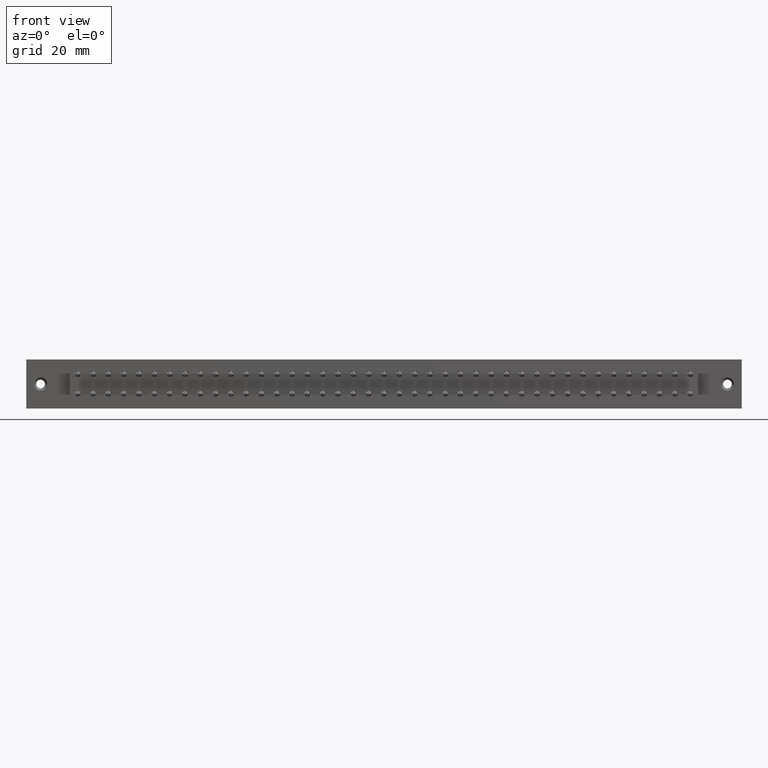
[diagram: clean part render]
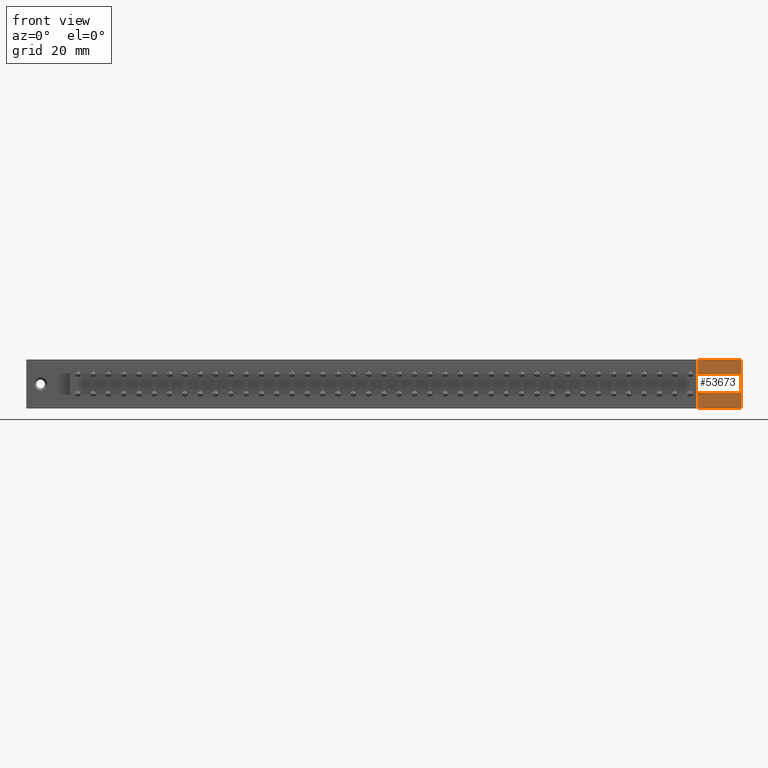
[diagram: same view with one face highlighted and labeled with its STEP entity id]
A machine part, front view. The second image highlights one B-rep face of the part: STEP entity #53673.
In plain terms, the highlighted planar face has unit normal (0, -1, 0).
Its self-contained STEP definition (entity closure, byte-faithful):
#1395 = DIRECTION ( 'NONE',  ( -1.000000000000000000, 0.0000000000000000000, 0.0000000000000000000 ) ) ;
#3092 = EDGE_LOOP ( 'NONE', ( #10586, #25294, #40635, #51958 ) ) ;
#5246 = DIRECTION ( 'NONE',  ( 0.0000000000000000000, -0.0000000000000000000, -1.000000000000000000 ) ) ;
#5953 = CARTESIAN_POINT ( 'NONE',  ( 7.290000000000000000, 0.1630000000000000100, -0.5000000000000000000 ) ) ;
#7599 = VECTOR ( 'NONE', #32108, 39.37007874015748100 ) ;
#7619 = EDGE_CURVE ( 'NONE', #24616, #49053, #39343, .T. ) ;
#8306 = LINE ( 'NONE', #32293, #24144 ) ;
#8849 = CARTESIAN_POINT ( 'NONE',  ( 6.844999999999999800, 0.1630000000000000100, 0.0000000000000000000 ) ) ;
#9038 = LINE ( 'NONE', #45620, #7599 ) ;
#10586 = ORIENTED_EDGE ( 'NONE', *, *, #37735, .T. ) ;
#11130 = DIRECTION ( 'NONE',  ( 0.0000000000000000000, 0.0000000000000000000, -1.000000000000000000 ) ) ;
#13560 = LINE ( 'NONE', #5953, #47370 ) ;
#14724 = CIRCLE ( 'NONE', #53844, 0.07800000000000000000 ) ;
#14835 = EDGE_CURVE ( 'NONE', #49053, #24616, #14724, .T. ) ;
#16556 = VERTEX_POINT ( 'NONE', #28655 ) ;
#17403 = AXIS2_PLACEMENT_3D ( 'NONE', #52282, #42627, #11130 ) ;
#18472 = FACE_OUTER_BOUND ( 'NONE', #3092, .T. ) ;
#18901 = DIRECTION ( 'NONE',  ( -0.0000000000000000000, -0.0000000000000000000, -1.000000000000000000 ) ) ;
#19933 = FACE_BOUND ( 'NONE', #45219, .T. ) ;
#21932 = ORIENTED_EDGE ( 'NONE', *, *, #7619, .T. ) ;
#22790 = EDGE_CURVE ( 'NONE', #56557, #34541, #58435, .T. ) ;
#23893 = CARTESIAN_POINT ( 'NONE',  ( 7.290000000000000000, 0.1630000000000000100, 0.0000000000000000000 ) ) ;
#24144 = VECTOR ( 'NONE', #18901, 39.37007874015748100 ) ;
#24616 = VERTEX_POINT ( 'NONE', #51977 ) ;
#25294 = ORIENTED_EDGE ( 'NONE', *, *, #22790, .T. ) ;
#27765 = CARTESIAN_POINT ( 'NONE',  ( 7.144499999999999900, 0.1630000000000000100, -0.3280000000000008500 ) ) ;
#28655 = CARTESIAN_POINT ( 'NONE',  ( 7.290000000000000000, 0.1630000000000000100, -0.5000000000000000000 ) ) ;
#31490 = DIRECTION ( 'NONE',  ( -0.0000000000000000000, 1.000000000000000000, -0.0000000000000000000 ) ) ;
#32108 = DIRECTION ( 'NONE',  ( 1.000000000000000000, -0.0000000000000000000, -2.762542914941388000E-015 ) ) ;
#32293 = CARTESIAN_POINT ( 'NONE',  ( 6.844999999999999800, 0.1630000000000000100, -0.4999999999999987800 ) ) ;
#34033 = DIRECTION ( 'NONE',  ( 0.0000000000000000000, 0.0000000000000000000, 1.000000000000000000 ) ) ;
#34541 = VERTEX_POINT ( 'NONE', #8849 ) ;
#36130 = DIRECTION ( 'NONE',  ( 0.0000000000000000000, 0.0000000000000000000, -1.000000000000000000 ) ) ;
#37735 = EDGE_CURVE ( 'NONE', #16556, #56557, #13560, .T. ) ;
#39343 = CIRCLE ( 'NONE', #17403, 0.07800000000000000000 ) ;
#40635 = ORIENTED_EDGE ( 'NONE', *, *, #41123, .T. ) ;
#40934 = VERTEX_POINT ( 'NONE', #51658 ) ;
#41123 = EDGE_CURVE ( 'NONE', #34541, #40934, #8306, .T. ) ;
#42219 = PLANE ( 'NONE',  #45055 ) ;
#42627 = DIRECTION ( 'NONE',  ( -0.0000000000000000000, 1.000000000000000000, -0.0000000000000000000 ) ) ;
#43393 = ORIENTED_EDGE ( 'NONE', *, *, #14835, .T. ) ;
#44756 = VECTOR ( 'NONE', #1395, 39.37007874015748100 ) ;
#45055 = AXIS2_PLACEMENT_3D ( 'NONE', #51479, #51066, #5246 ) ;
#45219 = EDGE_LOOP ( 'NONE', ( #21932, #43393 ) ) ;
#45620 = CARTESIAN_POINT ( 'NONE',  ( 7.290000000000000000, 0.1630000000000000100, -0.5000000000000000000 ) ) ;
#47370 = VECTOR ( 'NONE', #34033, 39.37007874015748100 ) ;
#49053 = VERTEX_POINT ( 'NONE', #27765 ) ;
#50858 = EDGE_CURVE ( 'NONE', #40934, #16556, #9038, .T. ) ;
#51066 = DIRECTION ( 'NONE',  ( 0.0000000000000000000, -1.000000000000000000, 0.0000000000000000000 ) ) ;
#51479 = CARTESIAN_POINT ( 'NONE',  ( 7.290000000000000000, 0.1630000000000000100, 0.0000000000000000000 ) ) ;
#51658 = CARTESIAN_POINT ( 'NONE',  ( 6.844999999999999800, 0.1630000000000000100, -0.5000000000000000000 ) ) ;
#51958 = ORIENTED_EDGE ( 'NONE', *, *, #50858, .T. ) ;
#51977 = CARTESIAN_POINT ( 'NONE',  ( 7.144499999999999900, 0.1630000000000000100, -0.1720000000000008200 ) ) ;
#52280 = CARTESIAN_POINT ( 'NONE',  ( 7.290000000000000000, 0.1630000000000000100, 0.0000000000000000000 ) ) ;
#52282 = CARTESIAN_POINT ( 'NONE',  ( 7.144499999999999900, 0.1630000000000000100, -0.2500000000000008300 ) ) ;
#53673 = ADVANCED_FACE ( 'NONE', ( #18472, #19933 ), #42219, .T. ) ;
#53844 = AXIS2_PLACEMENT_3D ( 'NONE', #59082, #31490, #36130 ) ;
#56557 = VERTEX_POINT ( 'NONE', #52280 ) ;
#58435 = LINE ( 'NONE', #23893, #44756 ) ;
#59082 = CARTESIAN_POINT ( 'NONE',  ( 7.144499999999999900, 0.1630000000000000100, -0.2500000000000008300 ) ) ;